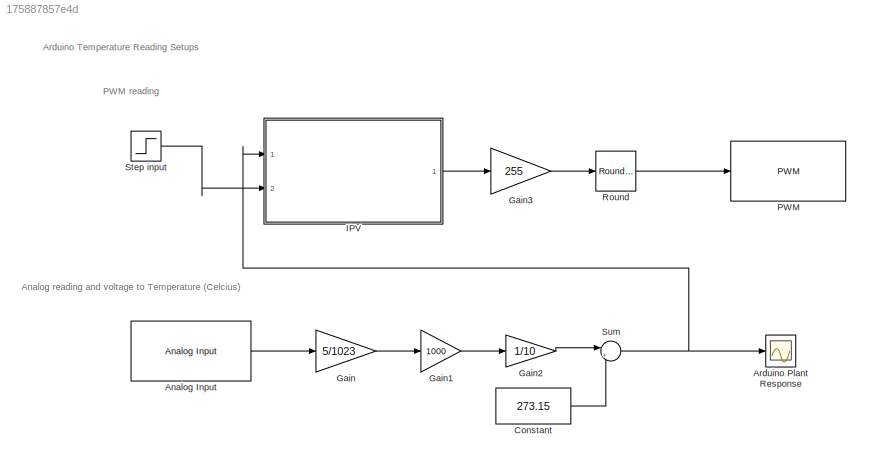
MODEL slx_175887857e4d
KIND model
CONFIG AbsTol = auto
CONFIG EnableMultiTasking = off
CONFIG FixedStep = auto
CONFIG MaxStep = auto
CONFIG MinStep = auto
CONFIG RelTol = 1e-3
CONFIG SampleTimeConstraint = Unconstrained
CONFIG Solver = VariableStepAuto
CONFIG SolverName = VariableStepAuto
CONFIG StartTime = 0.0
CONFIG StopTime = 10.0
BLOCK [Reference] Analog Input  REF=arduinolib/Analog Input
  Ports = [0, 1]
  SourceBlock = arduinolib/Analog Input
  SourceProductBaseCode = ARDUINO
  SourceProductName = Simulink Support Package for Arduino Hardware
  SourceType = Arduino Analog Input
BLOCK [Scope] Arduino Plant Response
  Floating = off
  NumInputPorts = 1
  Ports = [1]
  ScopeSpecificationString = Simulink.scopes.TimeScopeBlockCfg('CurrentConfiguration', extmgr.ConfigurationSet(extmgr.Configuration('Core','General UI',true),extmgr.Configuration('Core','Source UI',true),extmgr.Configuration('Sources','WiredSimulink',true,'DataLogging',true,'DataLoggingSaveFormat','StructureWithTime'),extmgr.Configuration('Visuals','Time Domain',true,'SerializedDisplays',{struct('MinYLimReal','0','MaxYLimReal...<+1430ch>
BLOCK [Constant] Constant
  Value = 273.15
BLOCK [Gain] Gain
  Gain = 5/1023
  OutDataTypeStr = Inherit: Inherit via internal rule
  ParamDataTypeStr = Inherit: Inherit via internal rule
  SaturateOnIntegerOverflow = off
BLOCK [Gain] Gain1
  Gain = 1000
  OutDataTypeStr = Inherit: Inherit via internal rule
  ParamDataTypeStr = Inherit: Inherit via internal rule
  SaturateOnIntegerOverflow = off
BLOCK [Gain] Gain2
  Gain = 1/10
  OutDataTypeStr = Inherit: Inherit via internal rule
  ParamDataTypeStr = Inherit: Inherit via internal rule
  SaturateOnIntegerOverflow = off
BLOCK [Gain] Gain3
  Gain = 255
  OutDataTypeStr = Inherit: Inherit via internal rule
  ParamDataTypeStr = Inherit: Inherit via internal rule
  SaturateOnIntegerOverflow = off
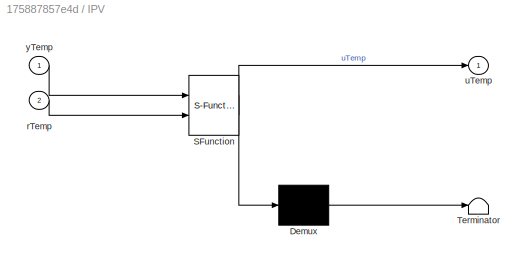
BLOCK [SubSystem] IPV 
  ErrorFcn = Stateflow.Translate.translate
  PermitHierarchicalResolution = ExplicitOnly
  Ports = [2, 1]
  RequestExecContextInheritance = off
  SFBlockType = MATLAB Function
  TreatAsAtomicUnit = on
BLOCK [Demux] IPV / Demux 
  Outputs = 1
  Ports = [1, 1]
BLOCK [S-Function] IPV / SFunction 
  EnableBusSupport = on
  FunctionName = sf_sfun
  Parameters = Kc,Umax,Umin,deltat,tauI
  PortCounts = [2 2]
  Ports = [2, 2]
  SFcnIsStateOwnerBlock = off
  SFunctionDeploymentMode = off
  Tag = Stateflow S-Function 1
BLOCK [Terminator] IPV / Terminator 
BLOCK [Inport] IPV /rTemp
  IconDisplay = Port number
  Port = 2
BLOCK [Outport] IPV /uTemp
  IconDisplay = Port number
BLOCK [Inport] IPV /yTemp
  IconDisplay = Port number
BLOCK [Reference] PWM  REF=arduinolib/PWM
  Ports = [1]
  SourceBlock = arduinolib/PWM
  SourceProductBaseCode = ARDUINO
  SourceProductName = Simulink Support Package for Arduino Hardware
  SourceType = Arduino PWM
BLOCK [Rounding] Round 
  Operator = round
BLOCK [Step] Step input
  After = step_amplitude
  SampleTime = sample_time
  Time = 0
BLOCK [Sum] Sum
  IconShape = round
  InputSameDT = off
  Inputs = |+-
  OutDataTypeStr = Inherit: Inherit via internal rule
  Ports = [2, 1]
  SaturateOnIntegerOverflow = off
ANNOTATION (root): Arduino Temperature Reading Setups
ANNOTATION (root): Analog reading and voltage to Temperature (Celcius)
ANNOTATION (root): PWM reading
LINE Analog Input:1 -> Gain:1
LINE Constant:1 -> Sum:2
LINE Gain1:1 -> Gain2:1
LINE Gain2:1 -> Sum:1
LINE Gain3:1 -> Round :1
LINE Gain:1 -> Gain1:1
LINE IPV :1 -> Gain3:1
LINE Round :1 -> PWM:1
LINE Step input:1 -> IPV :2
NET Sum:1 -> Arduino Plant Response:1, IPV :1
note: NET lines group one-source signal fan-out (src -> all destinations, sorted); 1:1 wires keep LINE
CHART IPV
 states=1 transitions=1
  STATE_LABEL 'eML_blk_kernel()'
  STATE_LABEL 'SCRIPT:\nfunction uTemp = IPV(yTemp,rTemp,Kc, tauI, deltat, Umin, Umax)\n    persistent uPast \n    if isempty(uPast)\n        uPast=0;\n    end\n    \n    persistent yPast \n    if isempty(yPast)\n        yPast=0; \n    end\n    \n    persistent uDPast \n    if isempty(uDPast)\n        uDPast=0;\n    end\n    \n    persistent rPast \n    if isempty(rPast)\n        rPast=0;\n    end\n   \n    uTemp = uPast+...\n        ...<+230ch>'
